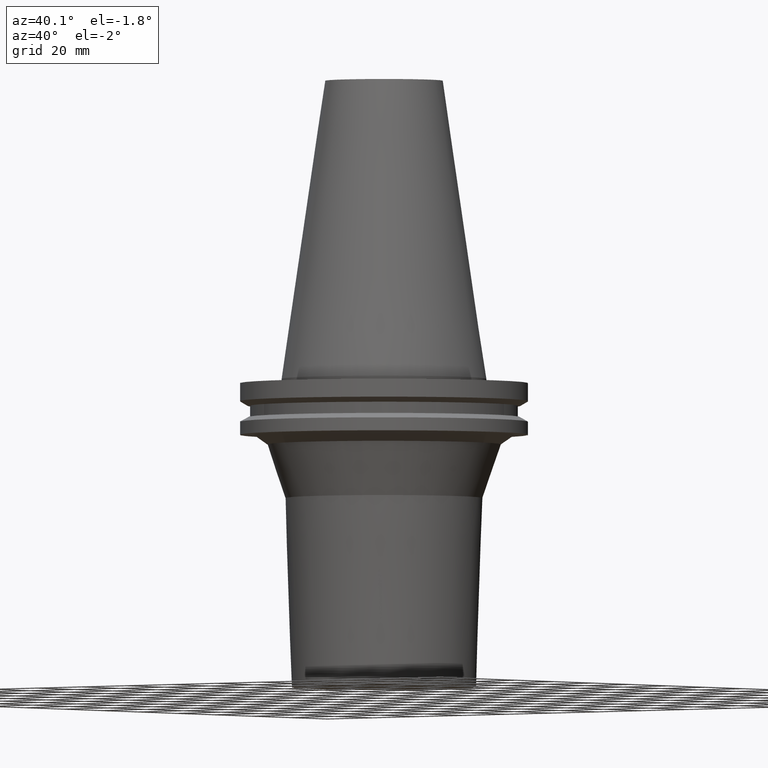
[diagram: clean part render]
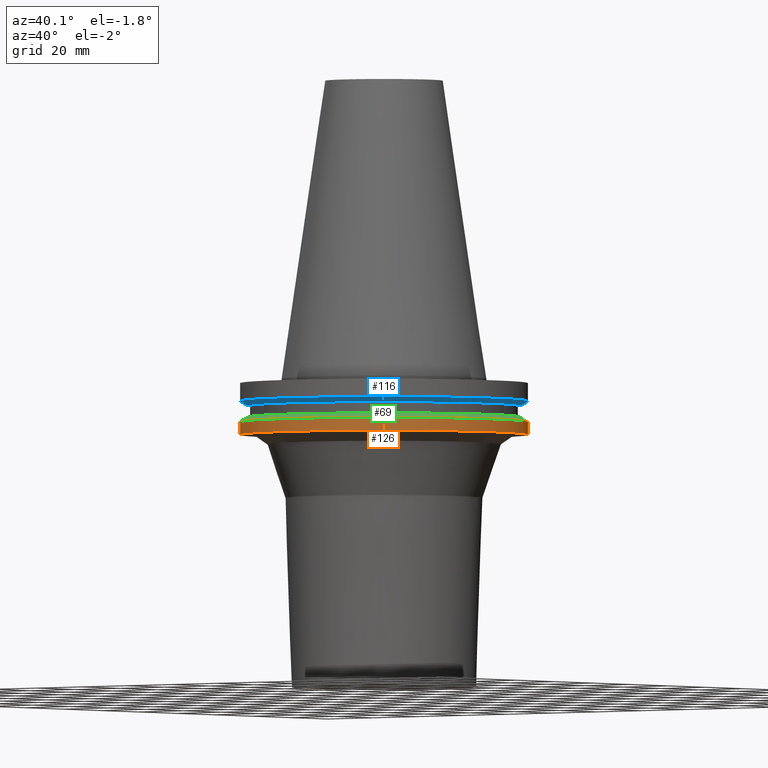
[diagram: same view with three faces highlighted in distinct colors, each labeled with its STEP entity id]
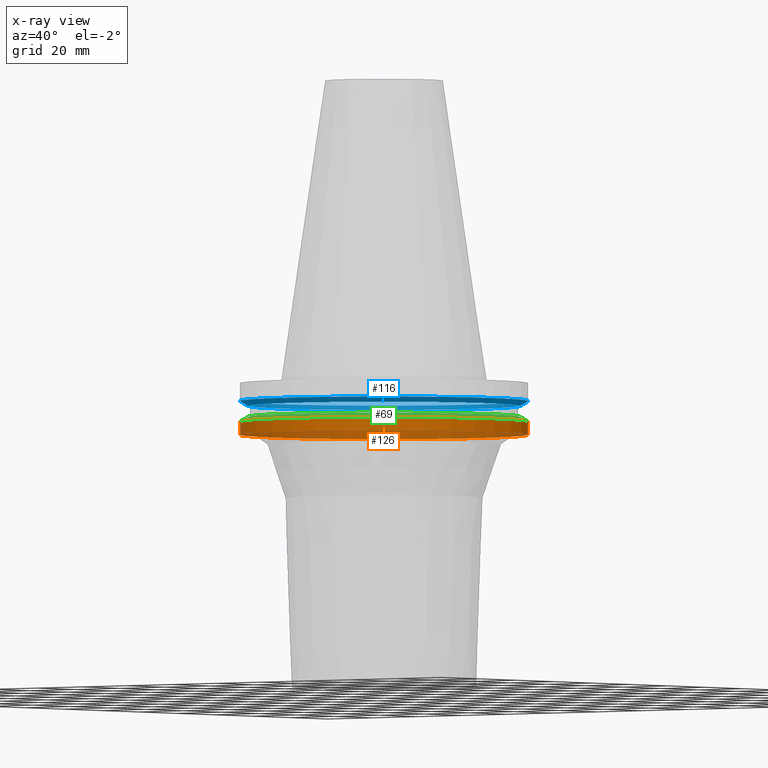
[diagram: x-ray of the same camera — body ghosted, the three highlighted faces saturated]
A machine part, auxiliary view with three faces highlighted in distinct colors.
The next image is the same camera in x-ray (body ghosted, the three faces saturated) — at least one of them is partly hidden behind the body in this view.
Their STEP definitions:

[orange] entity #126 — the highlighted cylindrical surface (bore or boss wall) has radius 49.2125 mm, axis along (0, -0, -1).
#83=EDGE_CURVE('Unnamed[1]',#194,#194,#195,.T.);
#126=ADVANCED_FACE('Unnamed[1]',(#261,#262),#263,.T.);
#135=EDGE_CURVE('Unnamed[1]',#276,#276,#277,.T.);
#194=VERTEX_POINT('',#338);
#195=CIRCLE('',#339,49.2125);
#261=FACE_BOUND('',#420,.T.);
#262=FACE_BOUND('',#421,.T.);
#263=CYLINDRICAL_SURFACE('',#422,49.2125);
#276=VERTEX_POINT('',#439);
#277=CIRCLE('',#440,49.2125);
#338=CARTESIAN_POINT('',(1.16647607618785E-015,49.2125,-19.05));
#339=AXIS2_PLACEMENT_3D('',#488,#489,#490);
#420=EDGE_LOOP('',(#562));
#421=EDGE_LOOP('',(#563));
#422=AXIS2_PLACEMENT_3D('',#564,#565,#566);
#439=CARTESIAN_POINT('',(8.96819062732941E-016,49.2125,-14.64616677));
#440=AXIS2_PLACEMENT_3D('',#579,#580,#581);
#488=CARTESIAN_POINT('',(1.16647607618785E-015,-1.05529366832737E-014,-19.05));
#489=DIRECTION('',(6.12323399573676E-017,-1.2238438572974E-016,-1.0));
#490=DIRECTION('',(2.6667295817079E-033,1.0,-1.2238438572974E-016));
#562=ORIENTED_EDGE('',*,*,#83,.F.);
#563=ORIENTED_EDGE('',*,*,#135,.T.);
#564=CARTESIAN_POINT('',(1.0316475694604E-015,-1.02834564709188E-014,-16.848083385));
#565=DIRECTION('',(6.12323399573676E-017,-1.2238438572974E-016,-1.0));
#566=DIRECTION('',(2.6667295817079E-033,1.0,-1.2238438572974E-016));
#579=CARTESIAN_POINT('',(8.96819062732941E-016,-1.00139762585639E-014,-14.64616677));
#580=DIRECTION('',(6.12323399573676E-017,-1.2238438572974E-016,-1.0));
#581=DIRECTION('',(2.6667295817079E-033,1.0,-1.2238438572974E-016));

[blue] entity #116 — the highlighted conical surface has half-angle 60 deg.
#75=EDGE_CURVE('Unnamed[1]',#182,#182,#183,.T.);
#116=ADVANCED_FACE('Unnamed[1]',(#245,#246),#247,.T.);
#133=EDGE_CURVE('Unnamed[1]',#273,#273,#274,.T.);
#182=VERTEX_POINT('',#323);
#183=CIRCLE('',#324,46.43053755);
#245=FACE_BOUND('',#400,.T.);
#246=FACE_BOUND('',#401,.T.);
#247=CONICAL_SURFACE('',#402,47.821518775,1.04719755103024);
#273=VERTEX_POINT('',#435);
#274=CIRCLE('',#436,49.2125);
#323=CARTESIAN_POINT('',(5.63337527607782E-016,46.43053755,-9.2));
#324=AXIS2_PLACEMENT_3D('',#474,#475,#476);
#400=EDGE_LOOP('',(#544));
#401=EDGE_LOOP('',(#545));
#402=AXIS2_PLACEMENT_3D('',#546,#547,#548);
#435=CARTESIAN_POINT('',(4.64988177918915E-016,49.2125,-7.59383323));
#436=AXIS2_PLACEMENT_3D('',#576,#577,#578);
#474=CARTESIAN_POINT('',(5.63337527607782E-016,-9.34745048383581E-015,-9.19999999999999));
#475=DIRECTION('',(6.12323399573677E-017,-1.22384385729754E-016,-1.0));
#476=DIRECTION('',(2.66672958171277E-033,1.0,-1.22384385729754E-016));
#544=ORIENTED_EDGE('',*,*,#75,.F.);
#545=ORIENTED_EDGE('',*,*,#133,.T.);
#546=CARTESIAN_POINT('',(5.14162852763349E-016,-9.24916561707284E-015,-8.396916615));
#547=DIRECTION('',(-6.12323399573677E-017,1.22384385729713E-016,1.0));
#548=DIRECTION('',(2.66672958170651E-033,1.0,-1.22384385729713E-016));
#576=CARTESIAN_POINT('',(4.64988177918915E-016,-9.15088075030986E-015,-7.59383322999999));
#577=DIRECTION('',(6.12323399573677E-017,-1.2238438572974E-016,-1.0));
#578=DIRECTION('',(2.6667295817079E-033,1.0,-1.2238438572974E-016));

[green] entity #69 — the highlighted conical surface has half-angle 60 deg.
#69=ADVANCED_FACE('Unnamed[1]',(#172,#173),#174,.T.);
#121=EDGE_CURVE('Unnamed[1]',#254,#254,#255,.T.);
#135=EDGE_CURVE('Unnamed[1]',#276,#276,#277,.T.);
#172=FACE_BOUND('',#310,.T.);
#173=FACE_BOUND('',#311,.T.);
#174=CONICAL_SURFACE('',#312,47.821518775,1.04719755103023);
#254=VERTEX_POINT('',#411);
#255=CIRCLE('',#412,46.43053755);
#276=VERTEX_POINT('',#439);
#277=CIRCLE('',#440,49.2125);
#310=EDGE_LOOP('',(#463));
#311=EDGE_LOOP('',(#464));
#312=AXIS2_PLACEMENT_3D('',#465,#466,#467);
#411=CARTESIAN_POINT('',(7.98469713044073E-016,46.43053755,-13.04));
#412=AXIS2_PLACEMENT_3D('',#555,#556,#557);
#439=CARTESIAN_POINT('',(8.96819062732941E-016,49.2125,-14.64616677));
#440=AXIS2_PLACEMENT_3D('',#579,#580,#581);
#463=ORIENTED_EDGE('',*,*,#135,.F.);
#464=ORIENTED_EDGE('',*,*,#121,.T.);
#465=CARTESIAN_POINT('',(8.47644387888507E-016,-9.91569139180096E-015,-13.843083385));
#466=DIRECTION('',(6.12323399573677E-017,-1.22384385729713E-016,-1.0));
#467=DIRECTION('',(2.66672958170651E-033,1.0,-1.22384385729713E-016));
#555=CARTESIAN_POINT('',(7.98469713044073E-016,-9.81740652503798E-015,-13.04));
#556=DIRECTION('',(6.12323399573677E-017,-1.22384385729754E-016,-1.0));
#557=DIRECTION('',(2.6667295817089E-033,1.0,-1.22384385729754E-016));
#579=CARTESIAN_POINT('',(8.96819062732941E-016,-1.00139762585639E-014,-14.64616677));
#580=DIRECTION('',(6.12323399573676E-017,-1.2238438572974E-016,-1.0));
#581=DIRECTION('',(2.6667295817079E-033,1.0,-1.2238438572974E-016));